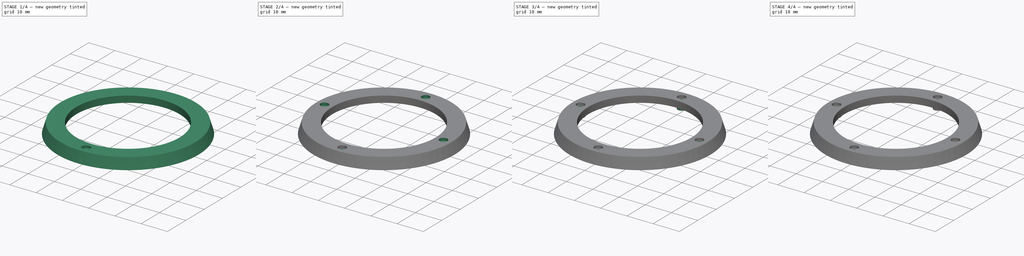
[diagram: build sequence overview — one tinted view per stage of 4, left to right]
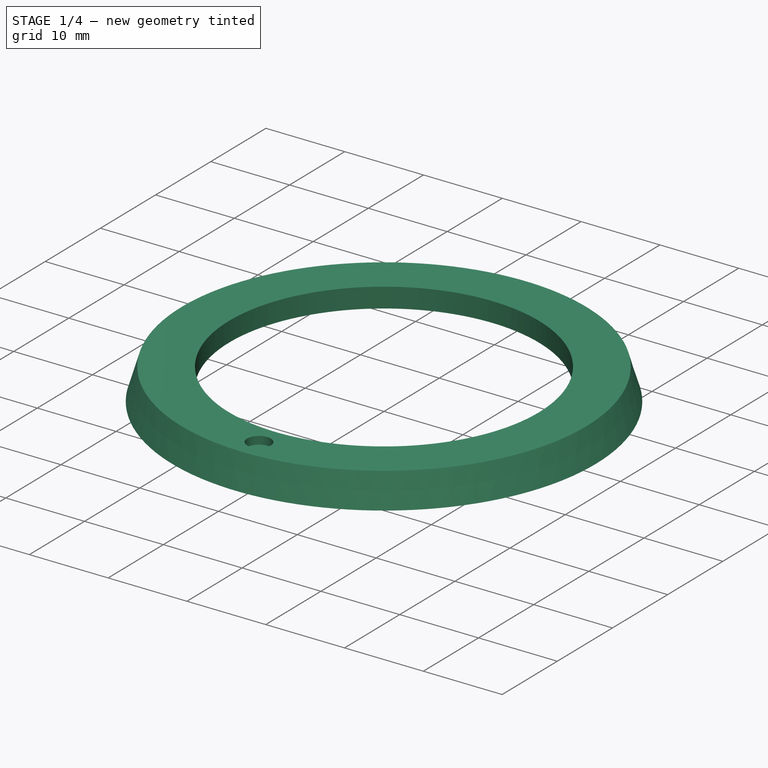
[diagram: stage 1 of 4 — iso view after this stage's code; geometry added in this stage tinted green]
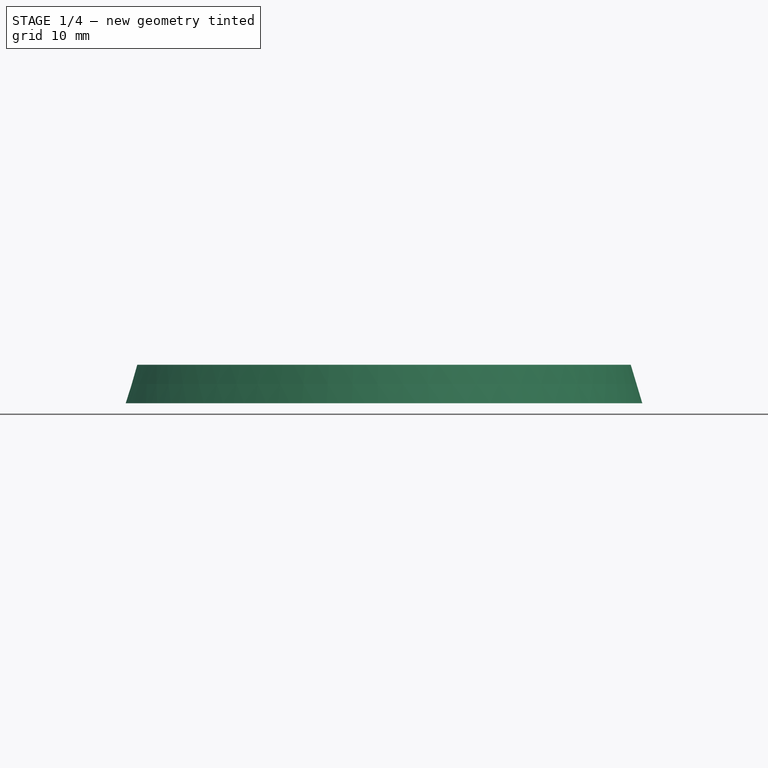
[diagram: stage 1 of 4 — front view after this stage's code; geometry added in this stage tinted green]
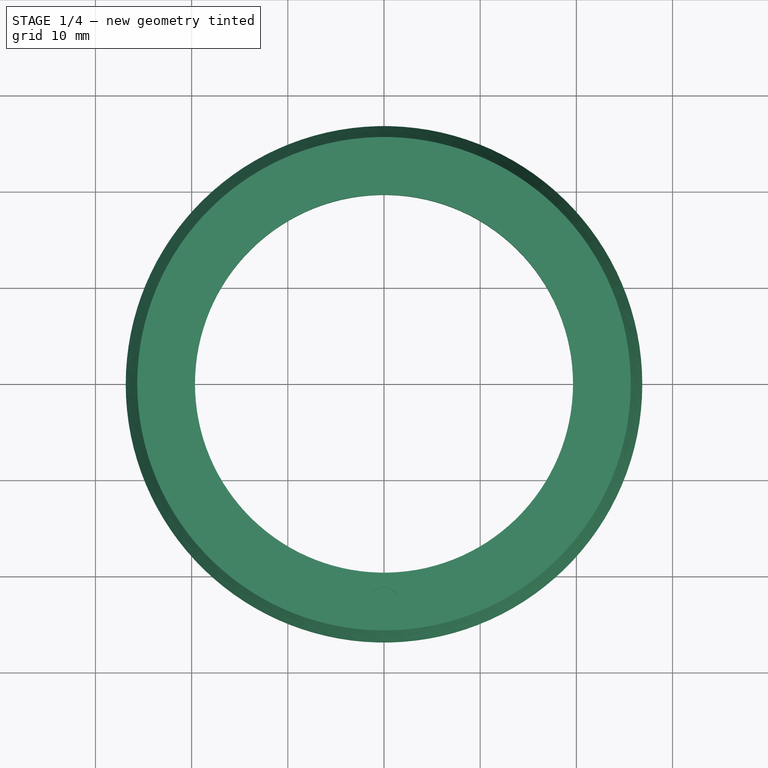
[diagram: stage 1 of 4 — top view after this stage's code; geometry added in this stage tinted green]
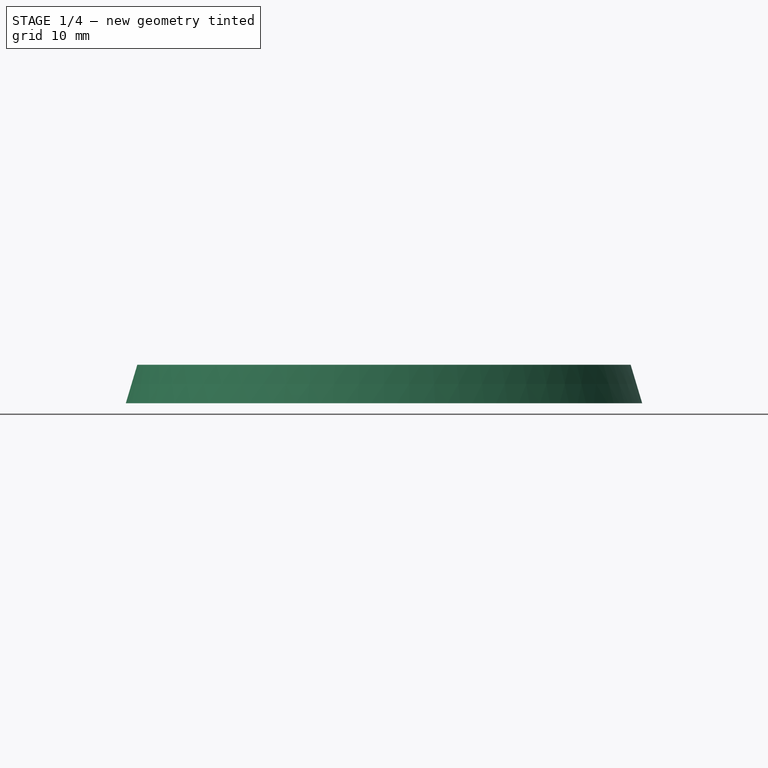
[diagram: stage 1 of 4 — right view after this stage's code; geometry added in this stage tinted green]
FCSTD DOCUMENT  (FreeCAD 0.18.3R)
Label: joystick_mounting_ring
License: All rights reserved
LicenseURL: http://en.wikipedia.org/wiki/All_rights_reserved
objects: Sketcher::SketchObject×4, PartDesign::PolarPattern×4, PartDesign::Pocket×3, PartDesign::Revolution×1, PartDesign::Pad×1, PartDesign::Body×1
note: 19 computed .brp shape members not serialized (recipe doc carries the construction recipe); baked Part::Feature solids carry a one-line shape summary decoded from their .brp

FEATURE [Sketcher::SketchObject] Sketch
  MapMode = 5
  Placement = pos=(0,0,0) rot=(1,0,0;1.5708rad)
  Support = -> [XZ_Plane]
  sketch-geometry (11):
    g0: LineSegment [constr] StartX=0 StartY=0 StartZ=0 EndX=19.65 EndY=0 EndZ=0
    g1: LineSegment [constr] StartX=19.65 StartY=0 StartZ=0 EndX=19.65 EndY=1.5 EndZ=0
    g2: LineSegment StartX=19.65 StartY=1.5 StartZ=0 EndX=19.65 EndY=4 EndZ=0
    g3: LineSegment StartX=19.65 StartY=4 StartZ=0 EndX=25.65 EndY=4 EndZ=0
    g4: LineSegment [constr] StartX=19.65 StartY=0 StartZ=0 EndX=26.85 EndY=0 EndZ=0
    g5: LineSegment StartX=25.65 StartY=4 StartZ=0 EndX=26.85 EndY=0 EndZ=0
    g6: LineSegment StartX=19.65 StartY=1.5 StartZ=0 EndX=21.15 EndY=1.5 EndZ=0
    g7: LineSegment StartX=21.15 StartY=1.5 StartZ=0 EndX=21.15 EndY=2.5 EndZ=0
    g8: LineSegment StartX=21.15 StartY=2.5 StartZ=0 EndX=24.15 EndY=2.5 EndZ=0
    g9: LineSegment StartX=24.15 StartY=2.5 StartZ=0 EndX=24.9 EndY=0 EndZ=0
    g10: LineSegment StartX=24.9 StartY=0 StartZ=0 EndX=26.85 EndY=0 EndZ=0
  constraints (31):
    c: Coincident(g0,g-1)
    c: Horizontal(g0)
    c: DistanceX(g0,g0) = 19.65
    c: Coincident(g1,g0)
    c: Vertical(g1)
    c: DistanceY(g1,g1) = 1.5
    c: Coincident(g2,g1)
    c: Vertical(g2)
    c: DistanceY(g2,g2) = 2.5
    c: Coincident(g3,g2)
    c: Horizontal(g3)
    c: DistanceX(g3,g3) = 6
    c: Coincident(g4,g0)
    c: Horizontal(g4)
    c: DistanceX(g4,g4) = 7.2
    c: Coincident(g5,g3)
    c: Coincident(g5,g4)
    c: Coincident(g6,g2)
    c: Horizontal(g6)
    c: DistanceX(g6,g6) = 1.5
    c: Coincident(g7,g6)
    c: Vertical(g7)
    c: DistanceY(g7,g7) = 1
    c: Coincident(g8,g7)
    c: Horizontal(g8)
    c: DistanceX(g8,g8) = 3
    c: Coincident(g9,g8)
    c: PointOnObject(g9,g4)
    c: Parallel(g9,g5)
    c: Coincident(g10,g9)
    c: Coincident(g10,g5)
FEATURE [PartDesign::Revolution] Revolution
  Angle = 360
  Axis = (0,-2e-16,1)
  Base = (0,0,0)
  Placement = pos=(0,0,0) rot=(1,0,0;1.5708rad)
  Profile = -> Sketch
  ReferenceAxis = -> Sketch [V_Axis]
  Reversed = true
FEATURE [Sketcher::SketchObject] Sketch001
  ExternalGeometry = -> [Revolution]
  MapMode = 5
  Placement = pos=(0,9e-16,4) rot=(0,0,1;3.14159rad)
  Support = -> [Revolution]
  sketch-geometry (5):
    g0: LineSegment [constr] StartX=0 StartY=25.65 StartZ=0 EndX=0 EndY=22.65 EndZ=0
    g1: LineSegment [constr] StartX=0 StartY=22.65 StartZ=0 EndX=0 EndY=19.65 EndZ=0
    g2: LineSegment [constr] StartX=0 StartY=22.65 StartZ=0 EndX=4.01 EndY=22.65 EndZ=0
    g3: LineSegment [constr] StartX=0 StartY=22.65 StartZ=0 EndX=-4.01 EndY=22.65 EndZ=0
    g4: Circle CenterX=0 CenterY=22.65 CenterZ=0 NormalX=0 NormalY=0 NormalZ=1 AngleXU=0 Radius=1.5
  constraints (15):
    c: Vertical(g0)
    c: Vertical(g1)
    c: Equal(g0,g1)
    c: PointOnObject(g0,g-3)
    c: Horizontal(g2)
    c: Horizontal(g3)
    c: Coincident(g3,g2)
    c: Equal(g3,g2)
    c: PointOnObject(g2,g-2)
    c: Coincident(g0,g1)
    c: Coincident(g0,g2)
    c: PointOnObject(g1,g-4)
    c: DistanceX(g3,g3) = 4.01
    c: Coincident(g4,g0)
    c: Diameter(g4) = 3
FEATURE [PartDesign::Pocket] Pocket
  BaseFeature = -> Revolution
  Length = 1
  Length2 = 100
  Placement = pos=(0,0,0) rot=(1,0,0;1.5708rad)
  Profile = -> Sketch001
  Type = 0
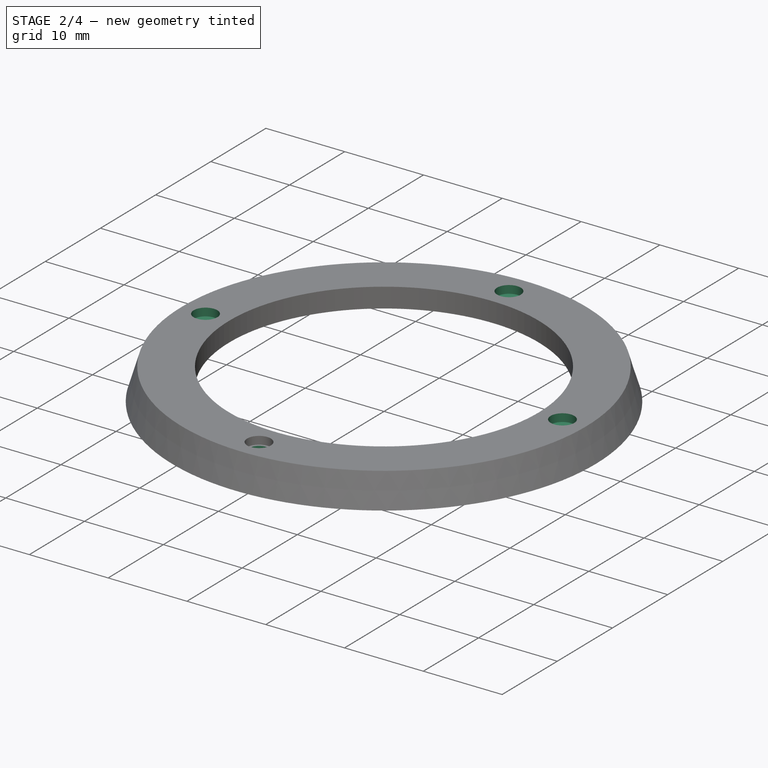
[diagram: stage 2 of 4 — iso view after this stage's code; geometry added in this stage tinted green]
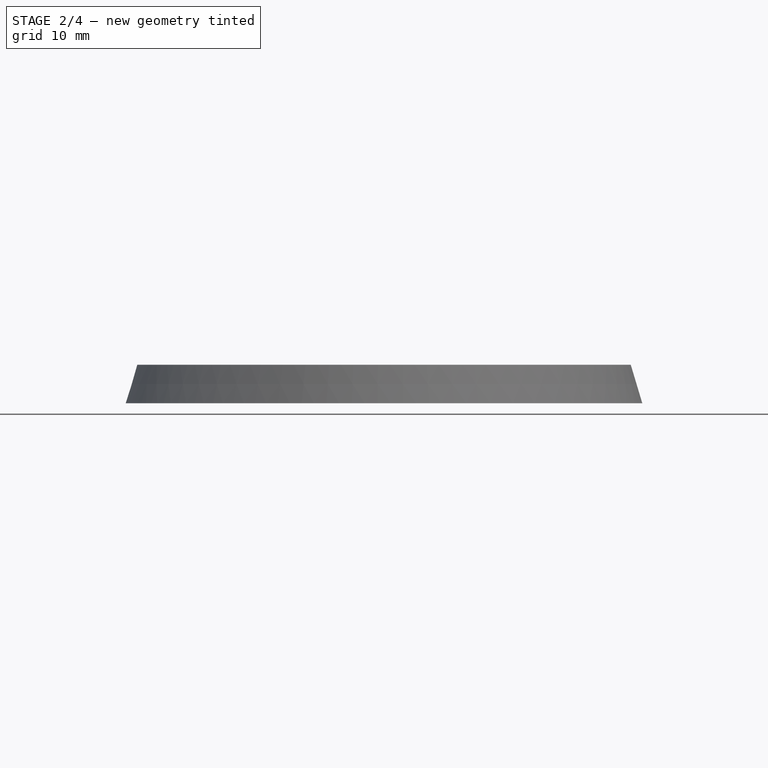
[diagram: stage 2 of 4 — front view after this stage's code; geometry added in this stage tinted green]
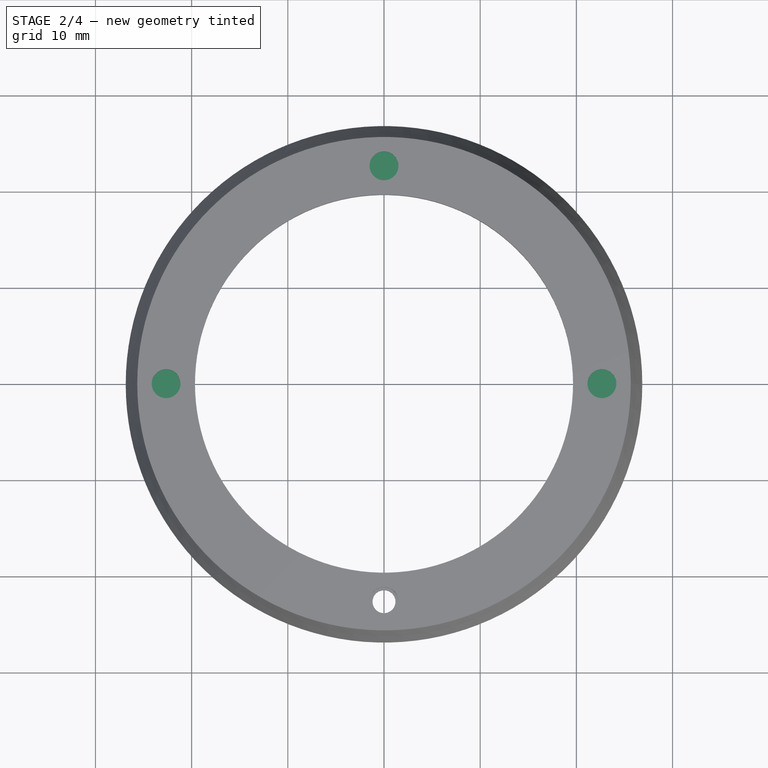
[diagram: stage 2 of 4 — top view after this stage's code; geometry added in this stage tinted green]
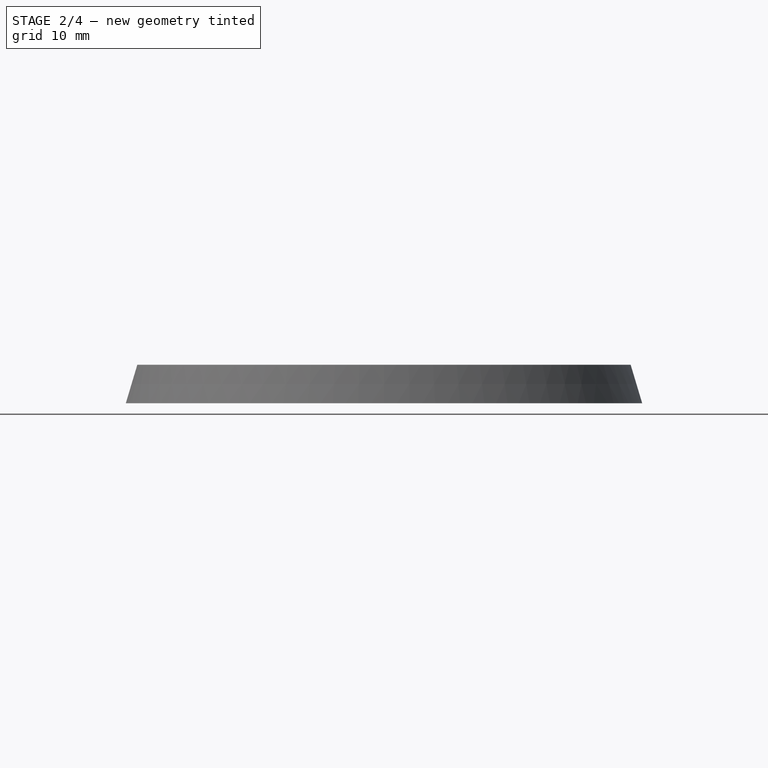
[diagram: stage 2 of 4 — right view after this stage's code; geometry added in this stage tinted green]
FEATURE [PartDesign::PolarPattern] PolarPattern
  Angle = 360
  Axis = -> Sketch001 [N_Axis]
  BaseFeature = -> Pocket
  Occurrences = 4
  Originals = -> [Pocket]
  Placement = pos=(0,0,0) rot=(1,0,0;1.5708rad)
FEATURE [Sketcher::SketchObject] Sketch002
  ExternalGeometry = -> [PolarPattern]
  MapMode = 5
  Placement = pos=(3e-16,2e-16,3) rot=(0,0,1;3.14159rad)
  Support = -> [PolarPattern]
  sketch-geometry (1):
    g0: Circle CenterX=0 CenterY=22.65 CenterZ=0 NormalX=0 NormalY=0 NormalZ=1 AngleXU=0 Radius=1.19
  constraints (1):
    c: Diameter(g0) = 2.38
FEATURE [PartDesign::Pocket] Pocket001
  BaseFeature = -> PolarPattern
  Length = 5
  Length2 = 100
  Placement = pos=(0,0,0) rot=(1,0,0;1.5708rad)
  Profile = -> Sketch002
  Type = 1
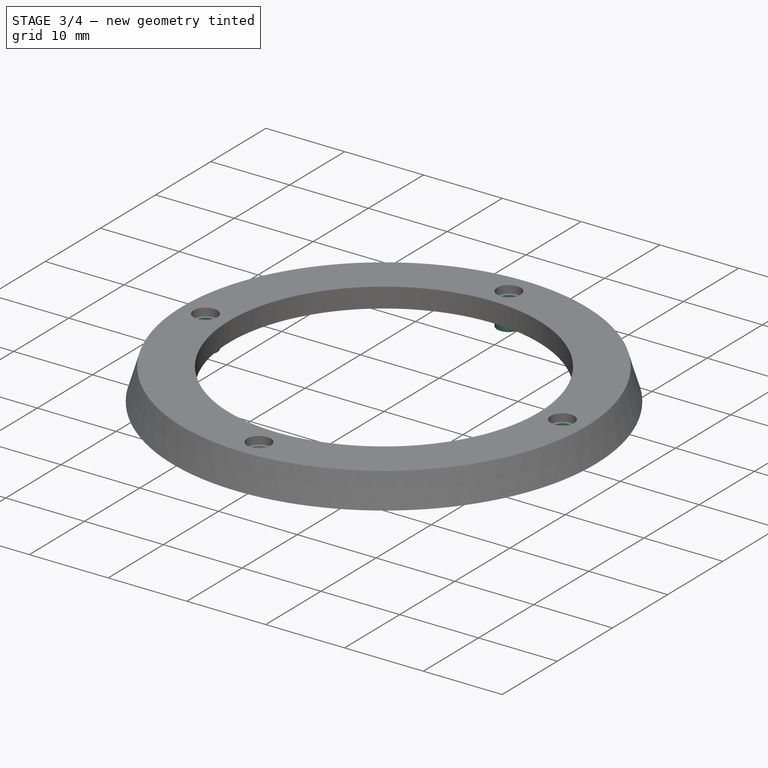
[diagram: stage 3 of 4 — iso view after this stage's code; geometry added in this stage tinted green]
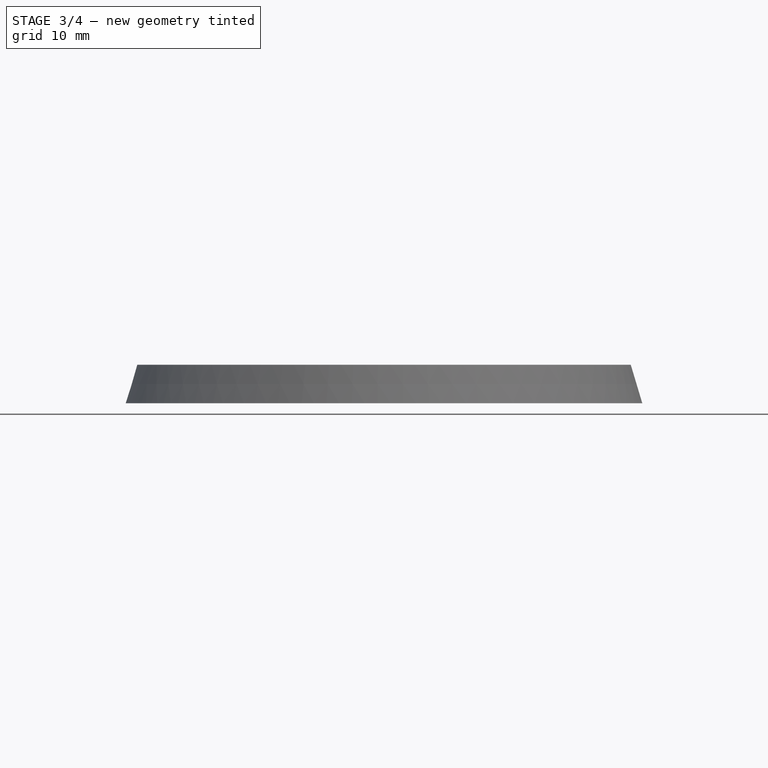
[diagram: stage 3 of 4 — front view after this stage's code; geometry added in this stage tinted green]
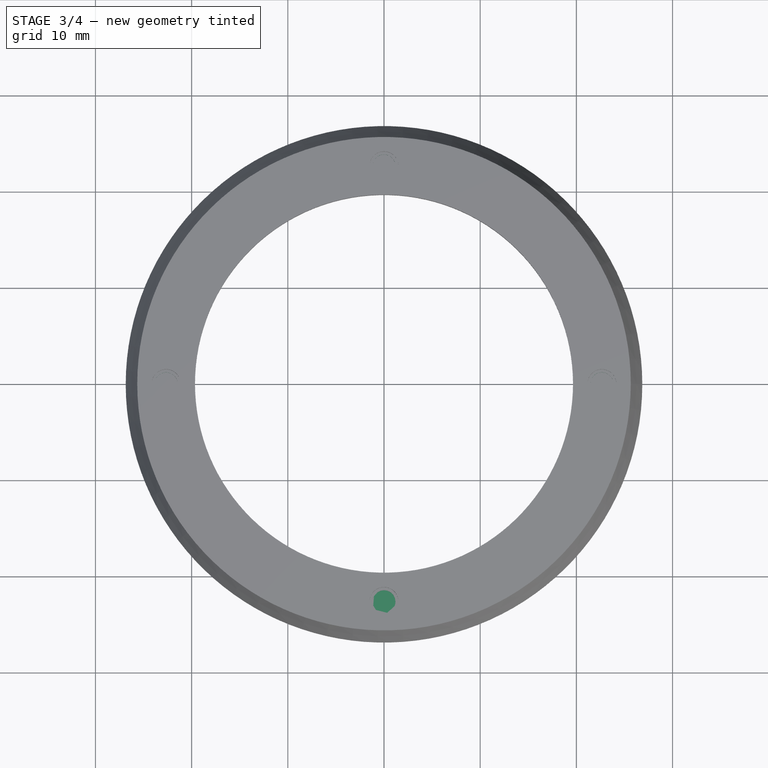
[diagram: stage 3 of 4 — top view after this stage's code; geometry added in this stage tinted green]
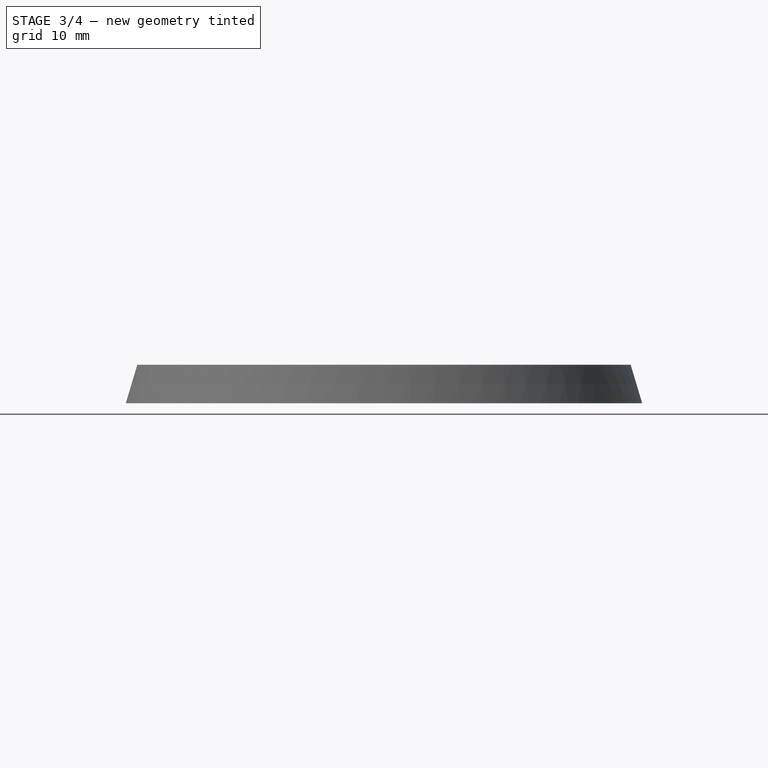
[diagram: stage 3 of 4 — right view after this stage's code; geometry added in this stage tinted green]
FEATURE [PartDesign::PolarPattern] PolarPattern001
  Angle = 360
  Axis = -> Sketch002 [N_Axis]
  BaseFeature = -> Pocket001
  Occurrences = 4
  Originals = -> [Pocket001]
  Placement = pos=(0,0,0) rot=(1,0,0;1.5708rad)
FEATURE [Sketcher::SketchObject] Sketch003
  ExternalGeometry = -> [PolarPattern001]
  MapMode = 5
  Placement = pos=(0,6e-16,2.5) rot=(1,0,0;3.14159rad)
  Support = -> [PolarPattern001]
  sketch-geometry (2):
    g0: Circle CenterX=2e-16 CenterY=22.65 CenterZ=0 NormalX=0 NormalY=0 NormalZ=1 AngleXU=0 Radius=1.5
    g1: LineSegment [constr] StartX=2e-16 StartY=22.65 StartZ=0 EndX=2e-16 EndY=24.15 EndZ=0
  constraints (5):
    c: Coincident(g0,g-3)
    c: Coincident(g1,g0)
    c: Vertical(g1)
    c: PointOnObject(g1,g-4)
    c: PointOnObject(g1,g0)
FEATURE [PartDesign::Pad] Pad
  BaseFeature = -> PolarPattern001
  Length = 10
  Length2 = 100
  Placement = pos=(0,0,0) rot=(1,0,0;1.5708rad)
  Profile = -> Sketch003
  Type = 3
  UpToFace = -> PolarPattern001 [Face11]
FEATURE [PartDesign::PolarPattern] PolarPattern002
  Angle = 360
  Axis = -> Sketch003 [N_Axis]
  BaseFeature = -> Pad
  Occurrences = 4
  Originals = -> [Pad]
  Placement = pos=(0,0,0) rot=(1,0,0;1.5708rad)
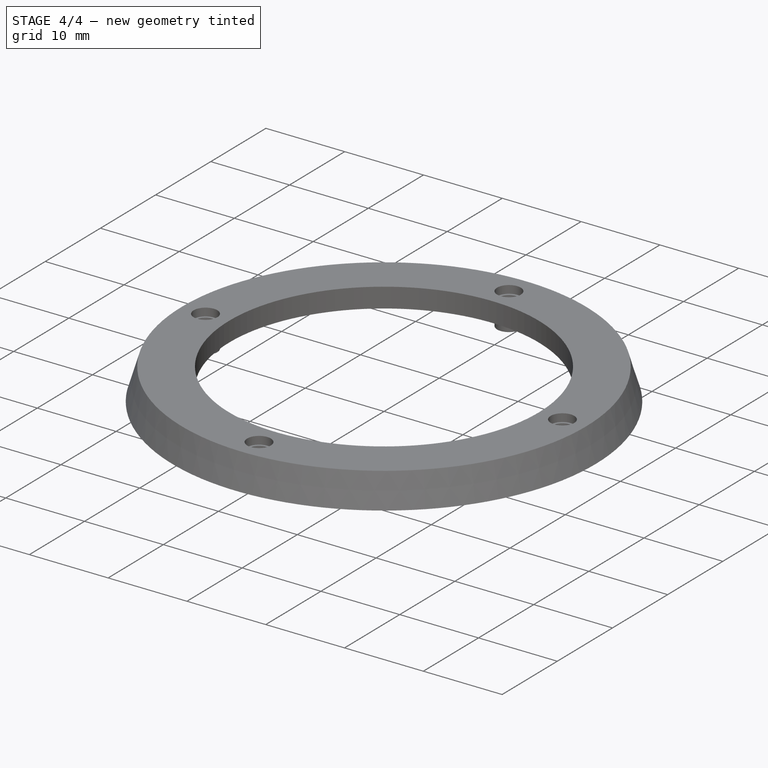
[diagram: stage 4 of 4 — iso view after this stage's code; geometry added in this stage tinted green]
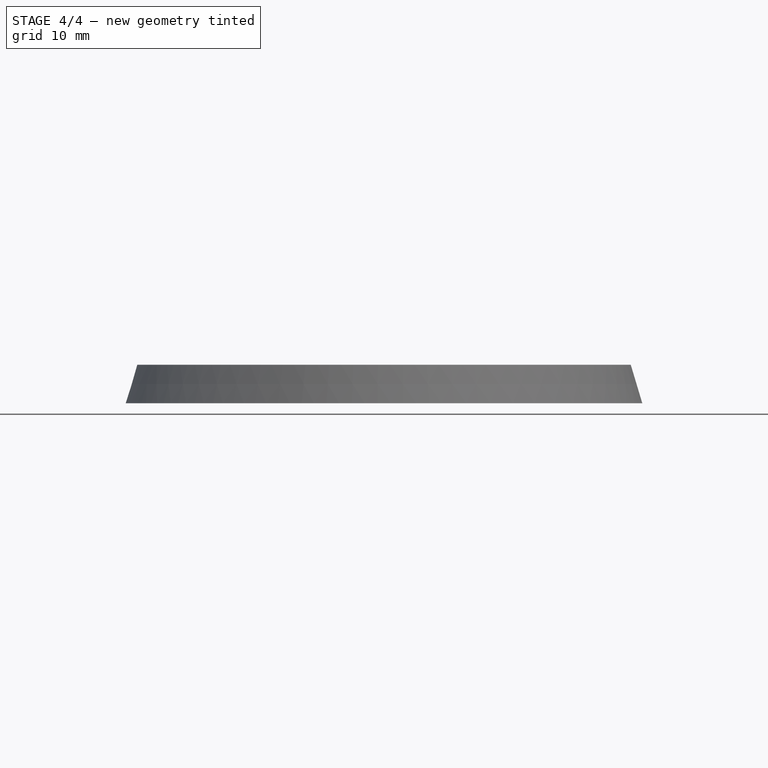
[diagram: stage 4 of 4 — front view after this stage's code; geometry added in this stage tinted green]
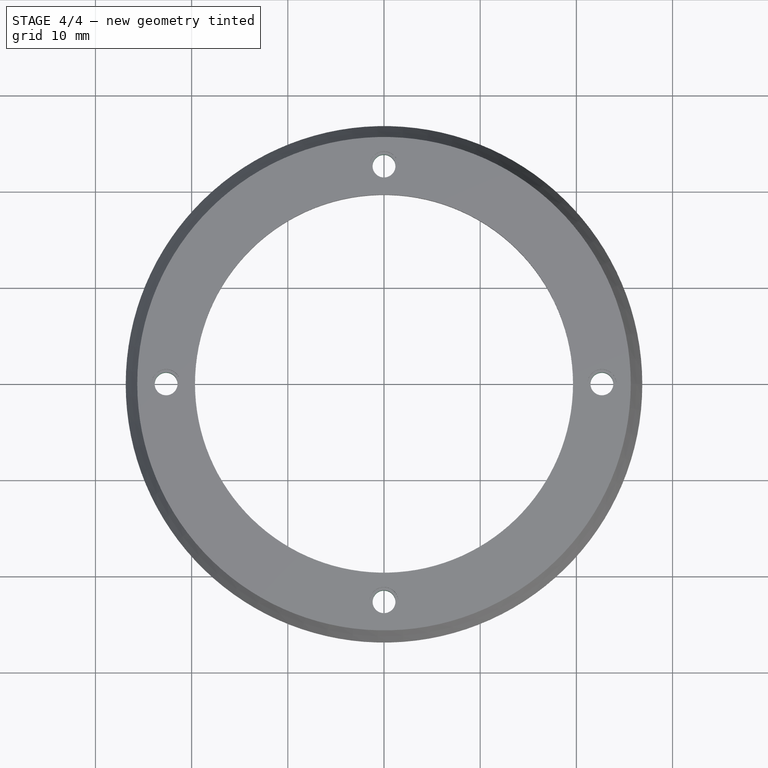
[diagram: stage 4 of 4 — top view after this stage's code; geometry added in this stage tinted green]
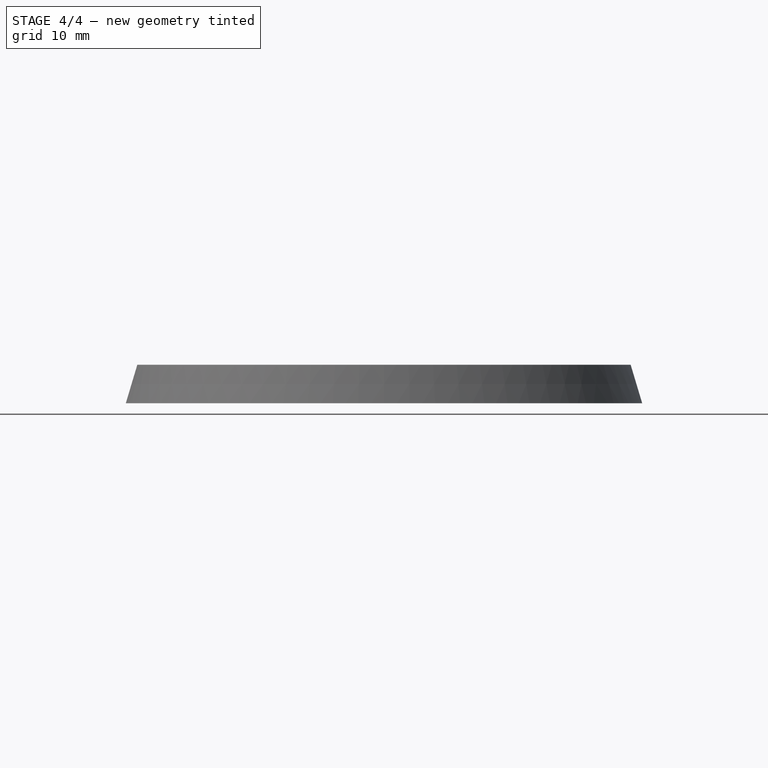
[diagram: stage 4 of 4 — right view after this stage's code; geometry added in this stage tinted green]
FEATURE [PartDesign::Pocket] Pocket002
  BaseFeature = -> PolarPattern002
  Length = 5
  Length2 = 100
  Placement = pos=(0,0,0) rot=(1,0,0;1.5708rad)
  Profile = -> PolarPattern002 [Face38]
  Type = 1
FEATURE [PartDesign::PolarPattern] PolarPattern003
  Angle = 360
  Axis = -> Z_Axis
  BaseFeature = -> Pocket002
  Occurrences = 4
  Originals = -> [Pocket002]
  Placement = pos=(0,0,0) rot=(1,0,0;1.5708rad)
FEATURE [PartDesign::Body] Body
  Group = -> [Sketch,Revolution,Sketch001,Pocket,PolarPattern,Sketch002,Pocket001,PolarPattern001,Sketch003,Pad,PolarPattern002,Pocket002,PolarPattern003]
  Origin = -> Origin
  Tip = -> PolarPattern003
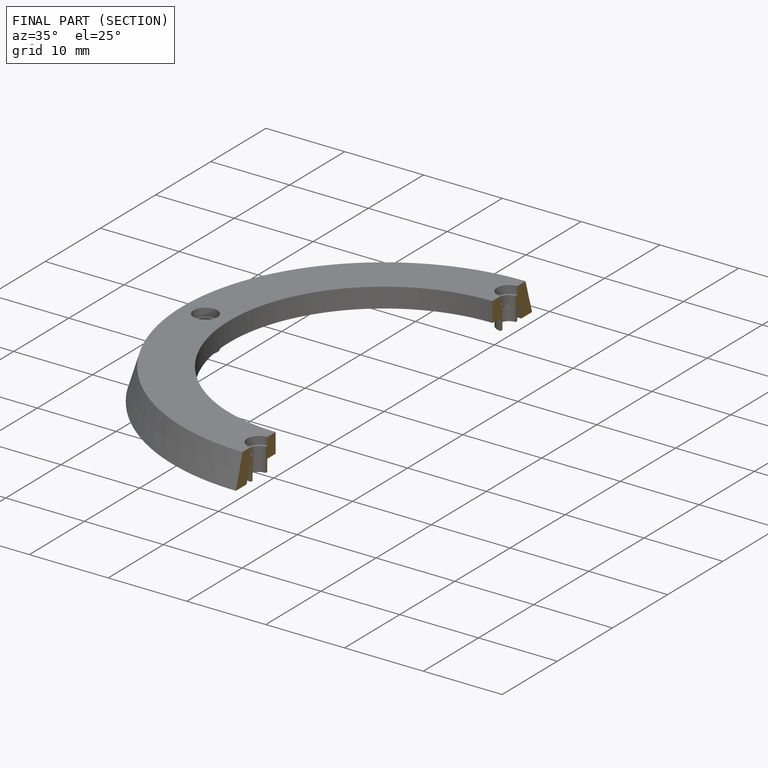
[diagram: finished part — half-section view (interior)]
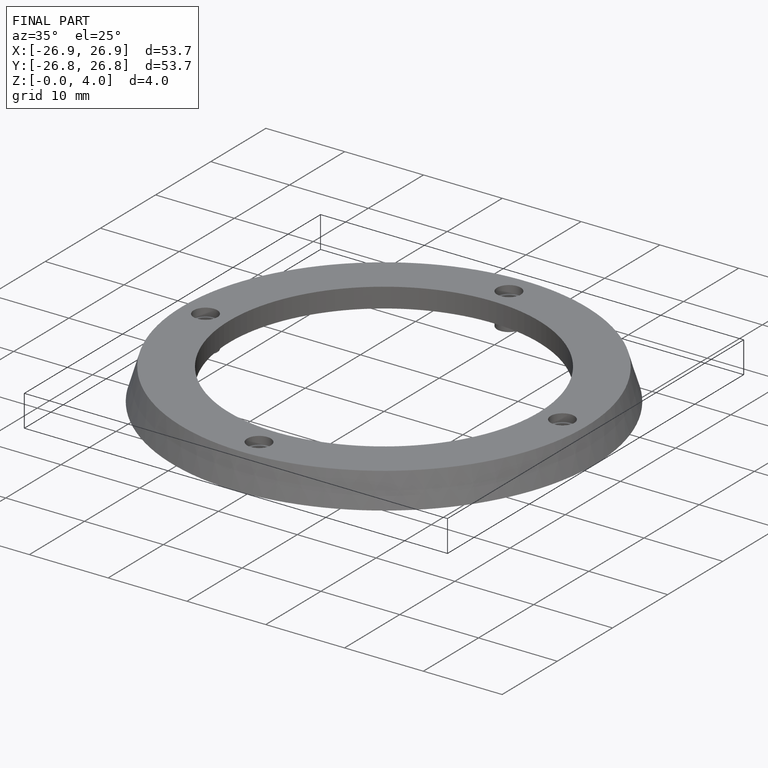
[diagram: finished part — iso view with bounding-box wireframe]
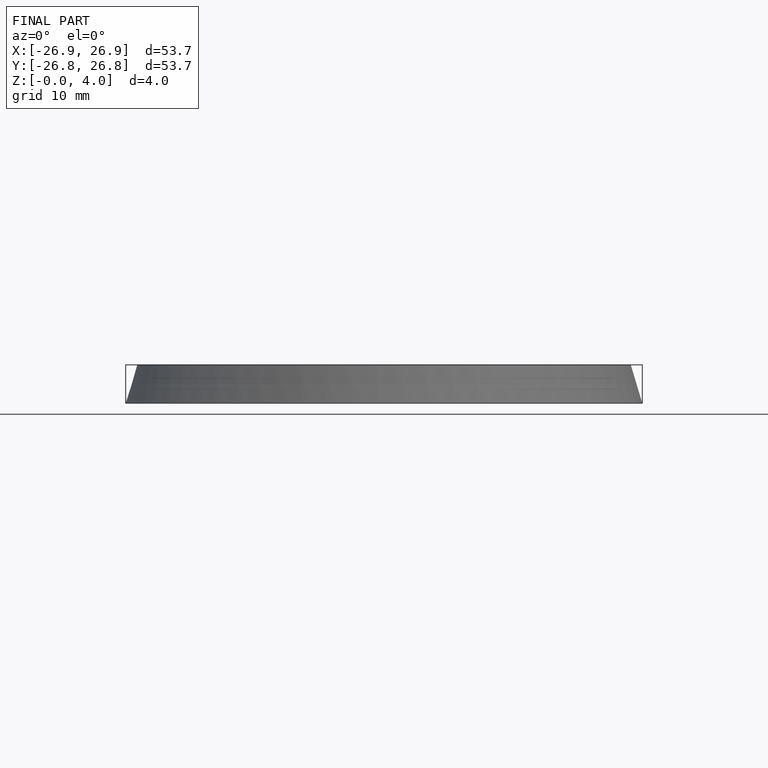
[diagram: finished part — front view with bounding-box wireframe]
